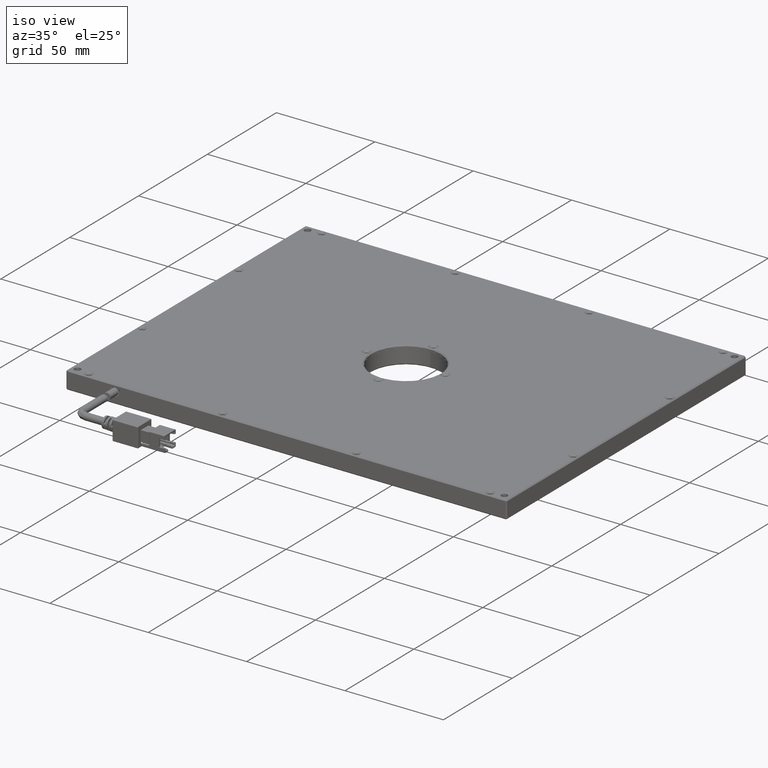
[diagram: clean part render]
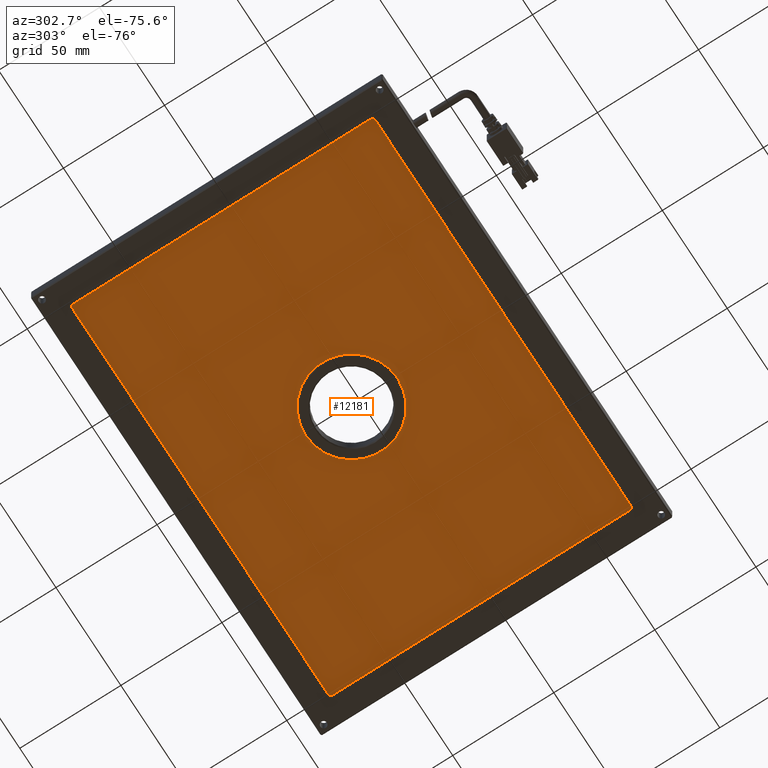
[diagram: tour spotlight — one face highlighted and labeled with its STEP entity id]
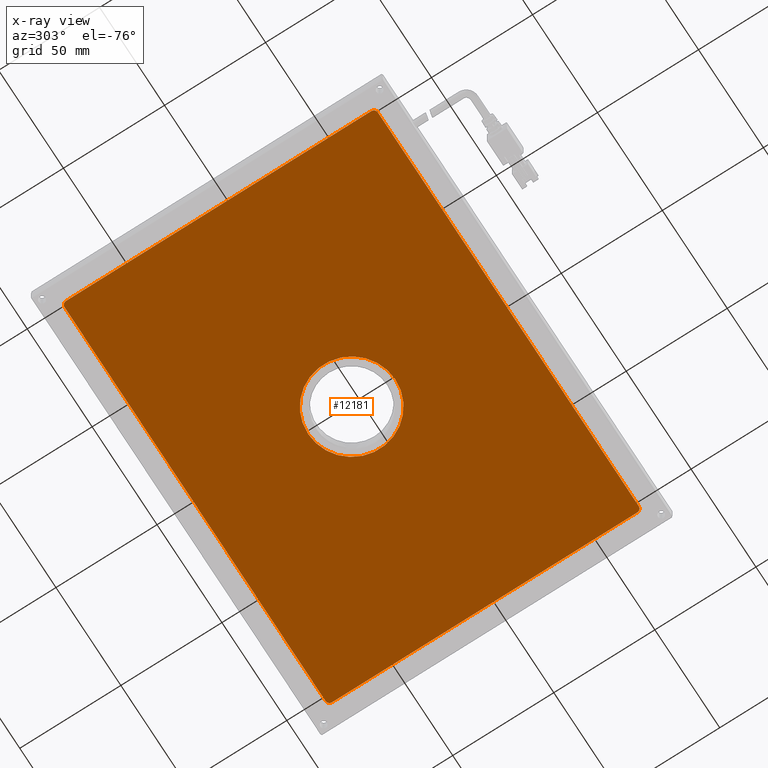
[diagram: x-ray of the same camera — body ghosted, this tour face saturated]
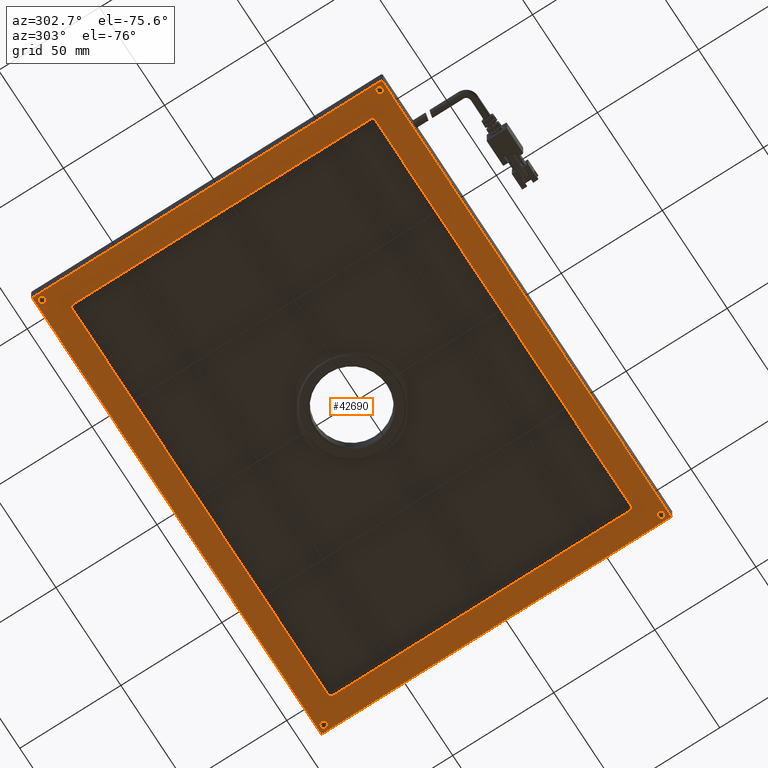
[diagram: tour spotlight — one face highlighted and labeled with its STEP entity id]
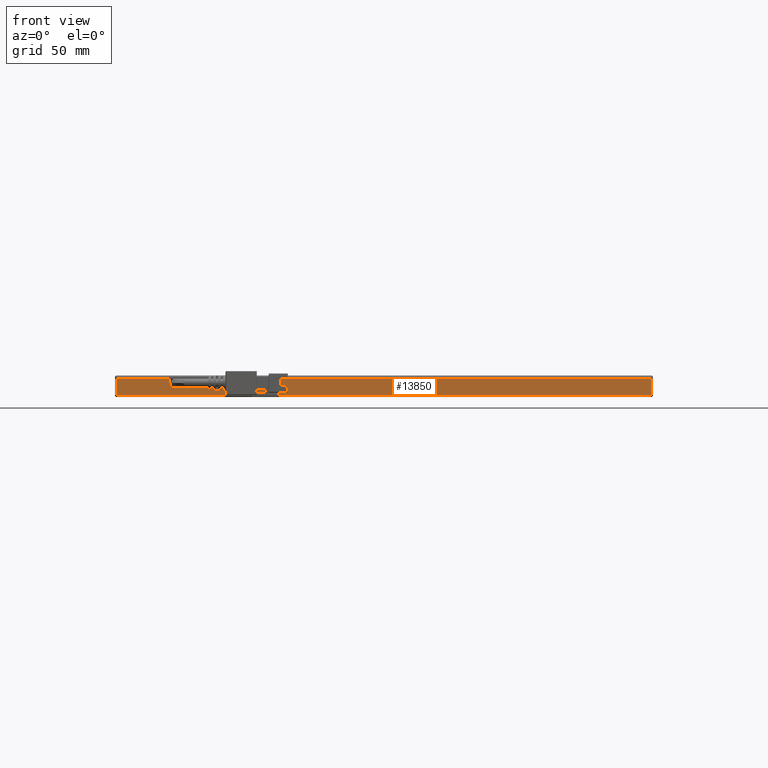
[diagram: tour spotlight — one face highlighted and labeled with its STEP entity id]
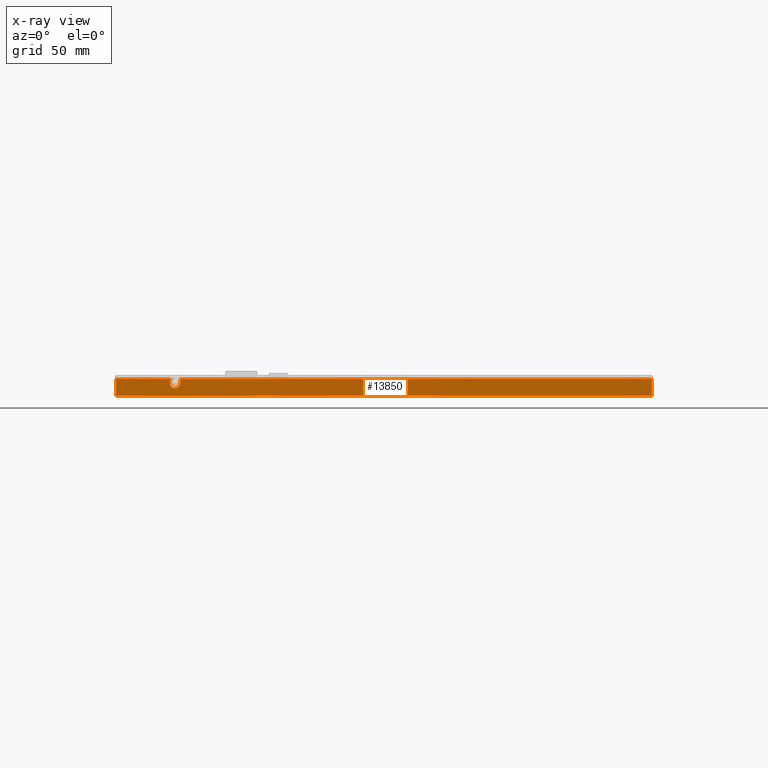
[diagram: x-ray of the same camera — body ghosted, this tour face saturated]
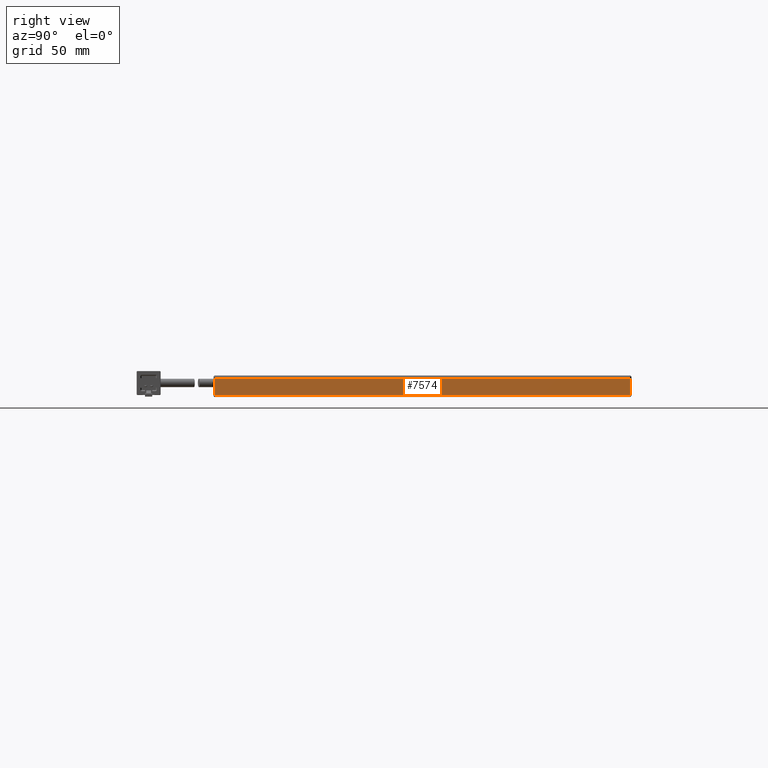
[diagram: tour spotlight — one face highlighted and labeled with its STEP entity id]
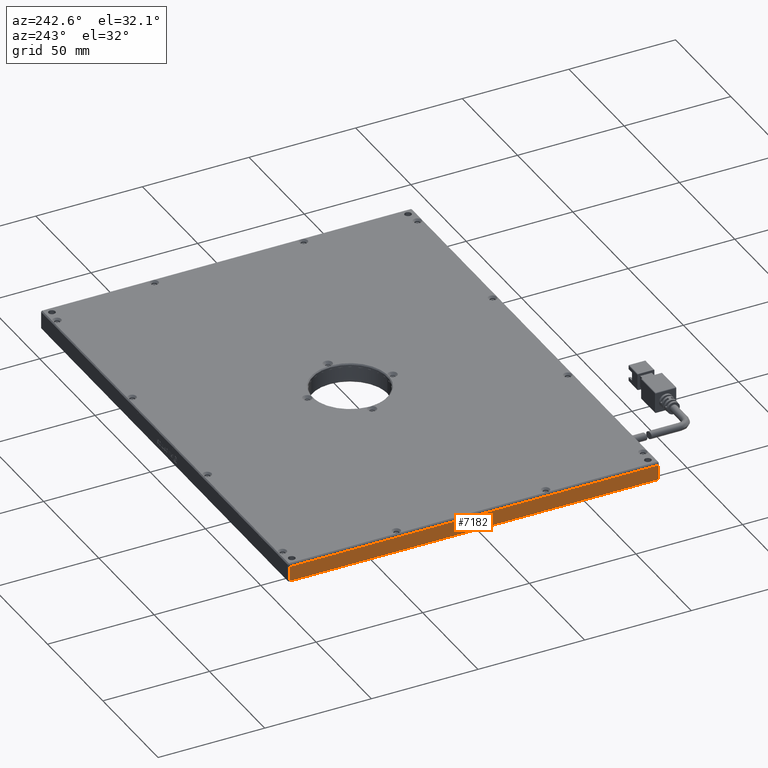
[diagram: tour spotlight — one face highlighted and labeled with its STEP entity id]
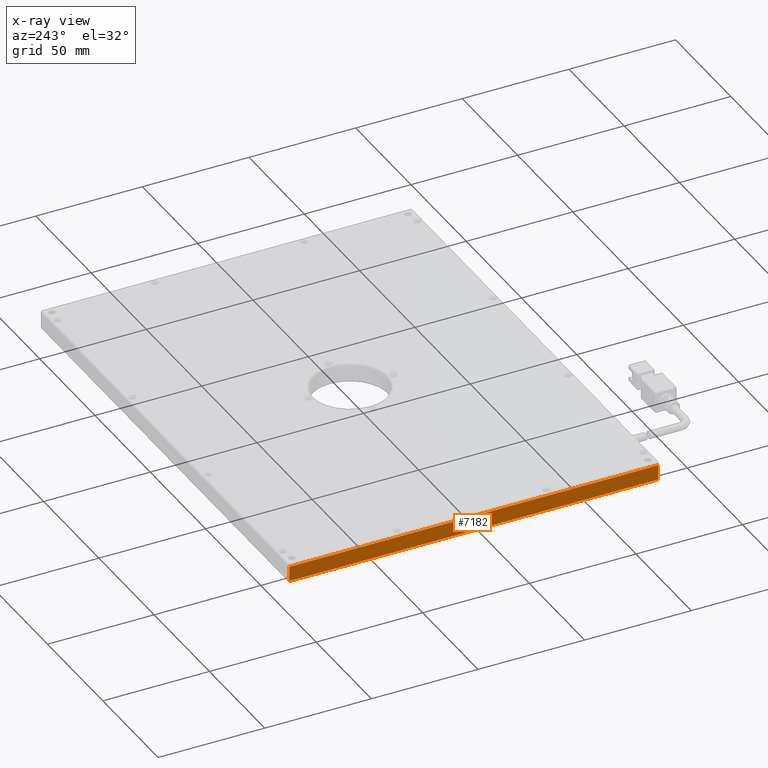
[diagram: x-ray of the same camera — body ghosted, this tour face saturated]
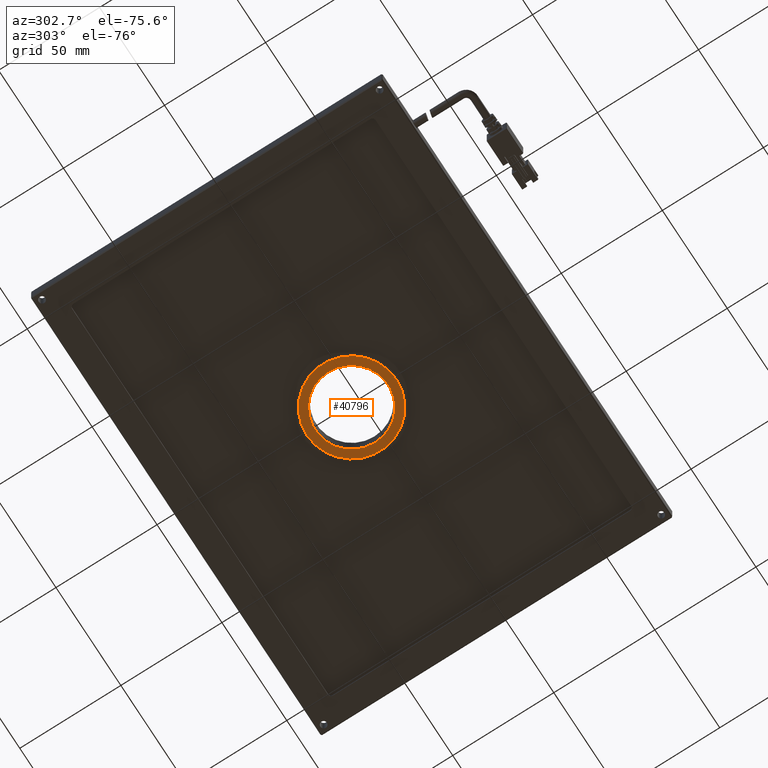
[diagram: tour spotlight — one face highlighted and labeled with its STEP entity id]
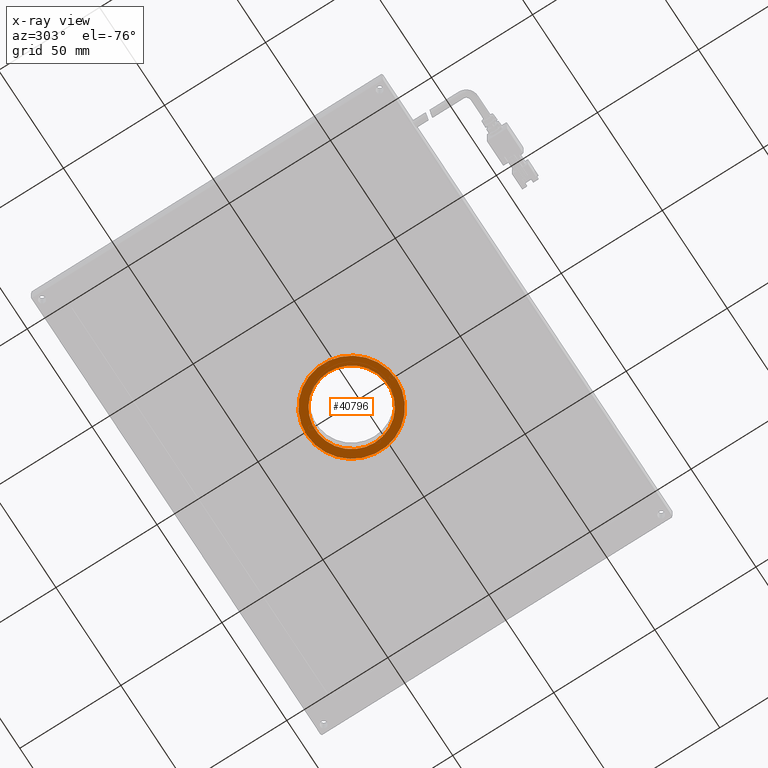
[diagram: x-ray of the same camera — body ghosted, this tour face saturated]
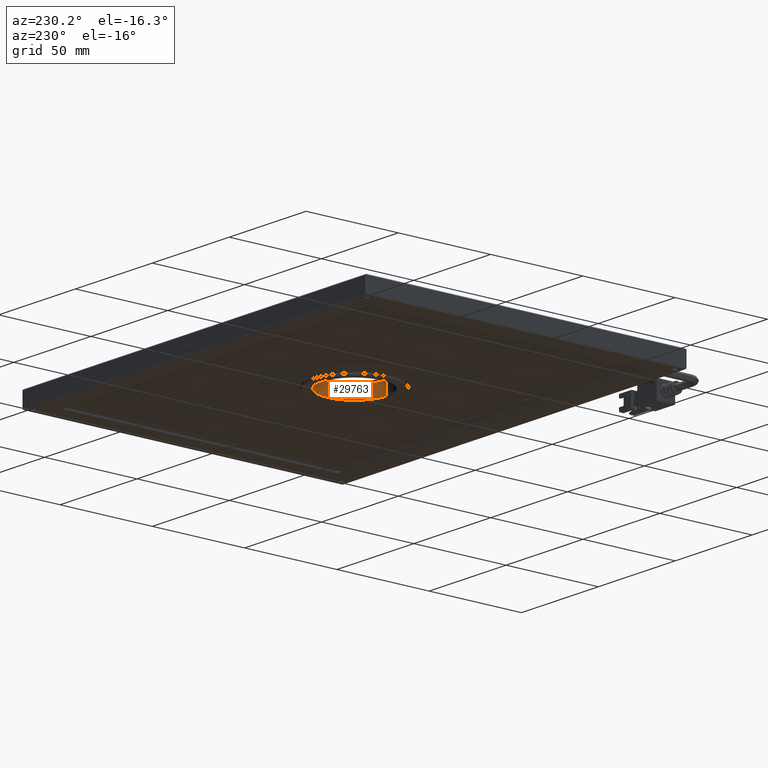
[diagram: tour spotlight — one face highlighted and labeled with its STEP entity id]
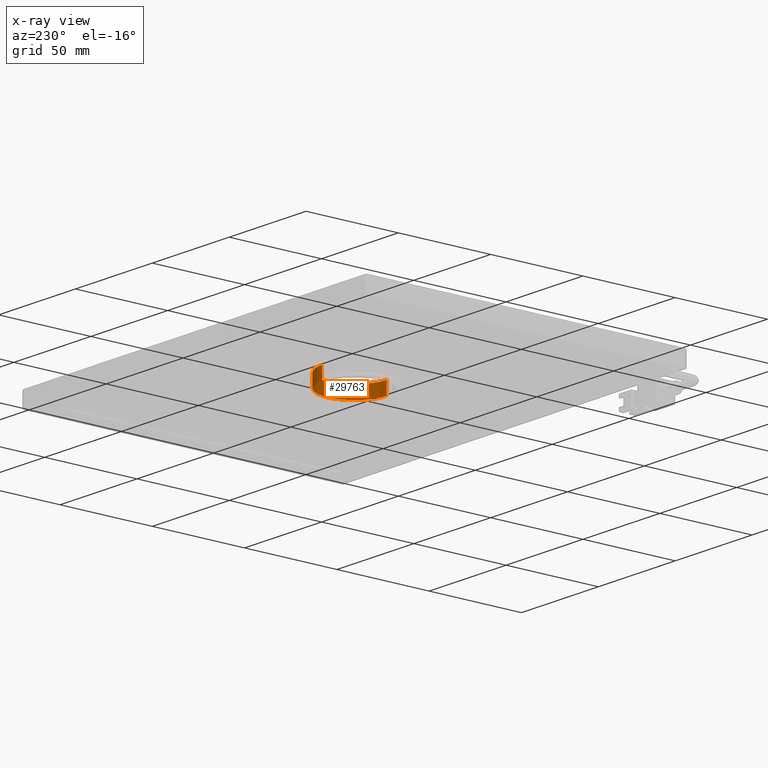
[diagram: x-ray of the same camera — body ghosted, this tour face saturated]
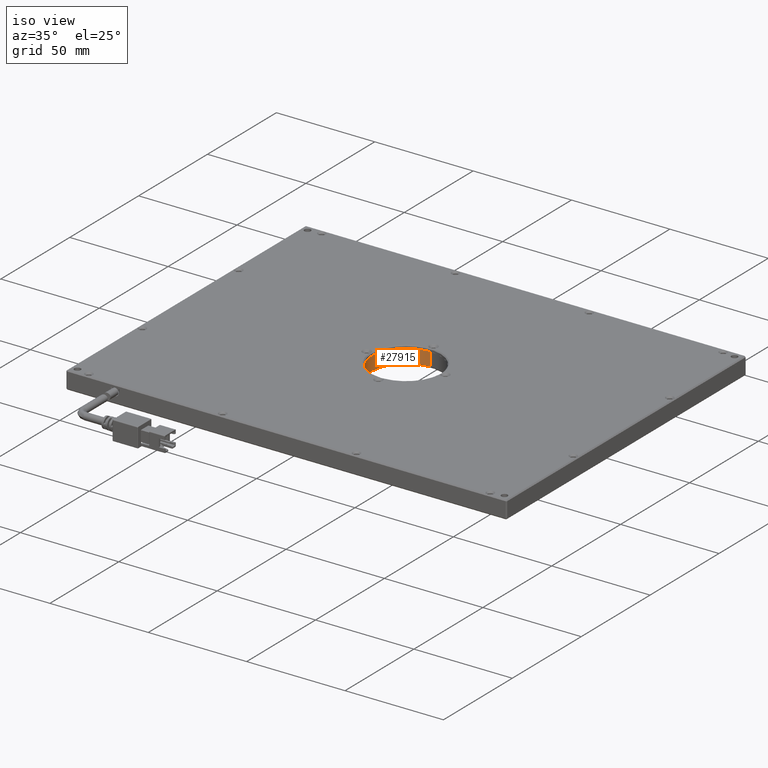
[diagram: tour spotlight — one face highlighted and labeled with its STEP entity id]
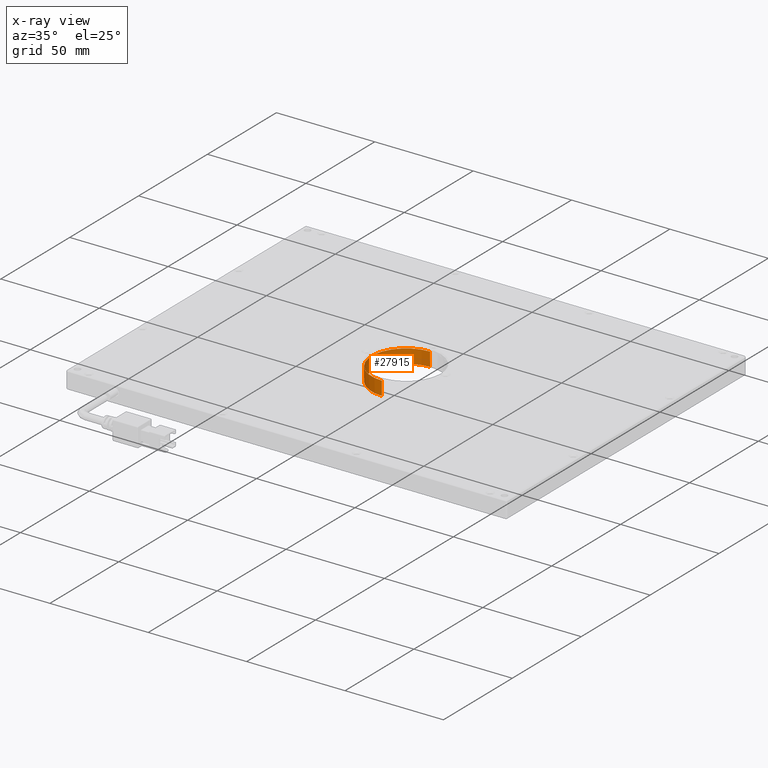
[diagram: x-ray of the same camera — body ghosted, this tour face saturated]
A machine part: a face-by-face anatomy tour. The part has 1145 B-rep faces; the first image is the clean iso view, then the 8 largest visible faces are spotlighted one at a time (largest first), each with its STEP entity span.

Face 1 — auxiliary view, entity #12181. An x-ray twin of the same camera follows (body ghosted, this face saturated) — the face is partly hidden behind the body. In plain terms, the highlighted planar face has unit normal (0, 0, 1).
Definition (entity closure, byte-faithful):
#188 = CARTESIAN_POINT ( 'NONE',  ( -98.17702531645565500, 82.69253164556964500, -2.749999999999999600 ) ) ;
#636 = CARTESIAN_POINT ( 'NONE',  ( 102.8229746835443200, 82.69253164556964500, -2.749999999999999600 ) ) ;
#815 = EDGE_CURVE ( 'NONE', #43552, #23066, #19266, .T. ) ;
#845 = LINE ( 'NONE', #2680, #5655 ) ;
#1288 = VECTOR ( 'NONE', #46641, 1000.000000000000000 ) ;
#2680 = CARTESIAN_POINT ( 'NONE',  ( 104.8229746835443400, 82.69253164556964500, -2.749999999999999600 ) ) ;
#2829 = LINE ( 'NONE', #45600, #34758 ) ;
#4340 = EDGE_LOOP ( 'NONE', ( #16578, #37303 ) ) ;
#5655 = VECTOR ( 'NONE', #33816, 1000.000000000000000 ) ;
#6708 = ORIENTED_EDGE ( 'NONE', *, *, #13297, .F. ) ;
#7332 = CARTESIAN_POINT ( 'NONE',  ( 2.322974683544365900, 5.192531645569626000, -2.749999999999999600 ) ) ;
#7382 = DIRECTION ( 'NONE',  ( 1.000000000000000000, -0.0000000000000000000, 0.0000000000000000000 ) ) ;
#7932 = VERTEX_POINT ( 'NONE', #47831 ) ;
#8109 = VERTEX_POINT ( 'NONE', #188 ) ;
#8318 = CIRCLE ( 'NONE', #46453, 2.000000000000001800 ) ;
#8543 = CIRCLE ( 'NONE', #38385, 21.60000000000000100 ) ;
#8559 = DIRECTION ( 'NONE',  ( 0.0000000000000000000, -1.000000000000000000, 0.0000000000000000000 ) ) ;
#9527 = ORIENTED_EDGE ( 'NONE', *, *, #40891, .T. ) ;
#9566 = AXIS2_PLACEMENT_3D ( 'NONE', #13752, #21953, #25185 ) ;
#10796 = CARTESIAN_POINT ( 'NONE',  ( 2.322974683544365900, 5.192531645569626000, -2.749999999999999600 ) ) ;
#10834 = ORIENTED_EDGE ( 'NONE', *, *, #21950, .T. ) ;
#11235 = DIRECTION ( 'NONE',  ( 0.0000000000000000000, 1.000000000000000000, 0.0000000000000000000 ) ) ;
#11416 = CARTESIAN_POINT ( 'NONE',  ( 104.8229746835443400, -70.30746835443035500, -2.749999999999999600 ) ) ;
#11480 = CARTESIAN_POINT ( 'NONE',  ( -98.17702531645565500, -70.30746835443035500, -2.749999999999999600 ) ) ;
#11827 = ORIENTED_EDGE ( 'NONE', *, *, #24436, .F. ) ;
#12181 = ADVANCED_FACE ( 'NONE', ( #13751, #14945 ), #29018, .F. ) ;
#12185 = EDGE_CURVE ( 'NONE', #27519, #21373, #14325, .T. ) ;
#13297 = EDGE_CURVE ( 'NONE', #7932, #48915, #39401, .T. ) ;
#13751 = FACE_OUTER_BOUND ( 'NONE', #22043, .T. ) ;
#13752 = CARTESIAN_POINT ( 'NONE',  ( 2.322974683544365900, 5.192531645569626000, -2.749999999999999600 ) ) ;
#14325 = CIRCLE ( 'NONE', #21419, 2.000000000000001800 ) ;
#14630 = CARTESIAN_POINT ( 'NONE',  ( -100.1770253164556700, -70.30746835443035500, -2.749999999999999600 ) ) ;
#14945 = FACE_BOUND ( 'NONE', #4340, .T. ) ;
#16215 = CARTESIAN_POINT ( 'NONE',  ( -100.1770253164556700, -72.30746835443035500, -2.749999999999999600 ) ) ;
#16276 = DIRECTION ( 'NONE',  ( 0.0000000000000000000, 0.0000000000000000000, 1.000000000000000000 ) ) ;
#16578 = ORIENTED_EDGE ( 'NONE', *, *, #42344, .T. ) ;
#18532 = VERTEX_POINT ( 'NONE', #26532 ) ;
#18676 = DIRECTION ( 'NONE',  ( -0.0000000000000000000, -0.0000000000000000000, 1.000000000000000000 ) ) ;
#19266 = CIRCLE ( 'NONE', #23750, 21.60000000000000100 ) ;
#20147 = CARTESIAN_POINT ( 'NONE',  ( -98.17702531645565500, 80.69253164556963000, -2.749999999999999600 ) ) ;
#21373 = VERTEX_POINT ( 'NONE', #636 ) ;
#21419 = AXIS2_PLACEMENT_3D ( 'NONE', #21602, #48560, #25523 ) ;
#21602 = CARTESIAN_POINT ( 'NONE',  ( 102.8229746835443300, 80.69253164556963000, -2.749999999999999600 ) ) ;
#21950 = EDGE_CURVE ( 'NONE', #7932, #31568, #30683, .T. ) ;
#21953 = DIRECTION ( 'NONE',  ( 0.0000000000000000000, 0.0000000000000000000, 1.000000000000000000 ) ) ;
#22043 = EDGE_LOOP ( 'NONE', ( #11827, #39571, #37176, #23188, #26995, #9527, #6708, #10834 ) ) ;
#23066 = VERTEX_POINT ( 'NONE', #41714 ) ;
#23188 = ORIENTED_EDGE ( 'NONE', *, *, #29315, .T. ) ;
#23623 = EDGE_CURVE ( 'NONE', #8109, #18532, #45824, .T. ) ;
#23750 = AXIS2_PLACEMENT_3D ( 'NONE', #10796, #18676, #34182 ) ;
#24436 = EDGE_CURVE ( 'NONE', #45807, #31568, #8318, .T. ) ;
#24964 = CARTESIAN_POINT ( 'NONE',  ( -98.17702531645565500, -72.30746835443035500, -2.749999999999999600 ) ) ;
#25185 = DIRECTION ( 'NONE',  ( 0.0000000000000000000, -1.000000000000000000, 0.0000000000000000000 ) ) ;
#25523 = DIRECTION ( 'NONE',  ( 0.0000000000000000000, -1.000000000000000000, 0.0000000000000000000 ) ) ;
#26532 = CARTESIAN_POINT ( 'NONE',  ( -100.1770253164556700, 80.69253164556963000, -2.749999999999999600 ) ) ;
#26995 = ORIENTED_EDGE ( 'NONE', *, *, #12185, .F. ) ;
#27519 = VERTEX_POINT ( 'NONE', #32917 ) ;
#29018 = PLANE ( 'NONE',  #9566 ) ;
#29315 = EDGE_CURVE ( 'NONE', #8109, #21373, #2829, .T. ) ;
#29469 = CARTESIAN_POINT ( 'NONE',  ( 102.8229746835443300, -70.30746835443035500, -2.749999999999999600 ) ) ;
#30459 = DIRECTION ( 'NONE',  ( 0.0000000000000000000, -1.000000000000000000, 0.0000000000000000000 ) ) ;
#30683 = LINE ( 'NONE', #16215, #32502 ) ;
#31568 = VERTEX_POINT ( 'NONE', #24964 ) ;
#32502 = VECTOR ( 'NONE', #39118, 1000.000000000000000 ) ;
#32917 = CARTESIAN_POINT ( 'NONE',  ( 104.8229746835443400, 80.69253164556963000, -2.749999999999999600 ) ) ;
#33452 = EDGE_CURVE ( 'NONE', #45807, #18532, #35662, .T. ) ;
#33722 = DIRECTION ( 'NONE',  ( 0.0000000000000000000, 0.0000000000000000000, 1.000000000000000000 ) ) ;
#33816 = DIRECTION ( 'NONE',  ( -0.0000000000000000000, -1.000000000000000000, -0.0000000000000000000 ) ) ;
#34182 = DIRECTION ( 'NONE',  ( 0.0000000000000000000, 1.000000000000000000, 0.0000000000000000000 ) ) ;
#34281 = DIRECTION ( 'NONE',  ( -0.0000000000000000000, -0.0000000000000000000, 1.000000000000000000 ) ) ;
#34363 = DIRECTION ( 'NONE',  ( 0.0000000000000000000, 0.0000000000000000000, 1.000000000000000000 ) ) ;
#34758 = VECTOR ( 'NONE', #7382, 1000.000000000000000 ) ;
#34877 = CARTESIAN_POINT ( 'NONE',  ( -100.1770253164556700, 82.69253164556964500, -2.749999999999999600 ) ) ;
#35662 = LINE ( 'NONE', #34877, #1288 ) ;
#37176 = ORIENTED_EDGE ( 'NONE', *, *, #23623, .F. ) ;
#37303 = ORIENTED_EDGE ( 'NONE', *, *, #815, .T. ) ;
#37759 = DIRECTION ( 'NONE',  ( 0.0000000000000000000, -1.000000000000000000, 0.0000000000000000000 ) ) ;
#38385 = AXIS2_PLACEMENT_3D ( 'NONE', #7332, #34281, #11235 ) ;
#38876 = CARTESIAN_POINT ( 'NONE',  ( 2.322974683544368500, -16.40746835443037500, -2.749999999999999600 ) ) ;
#39118 = DIRECTION ( 'NONE',  ( -1.000000000000000000, -0.0000000000000000000, -0.0000000000000000000 ) ) ;
#39401 = CIRCLE ( 'NONE', #41544, 2.000000000000001800 ) ;
#39571 = ORIENTED_EDGE ( 'NONE', *, *, #33452, .T. ) ;
#40891 = EDGE_CURVE ( 'NONE', #27519, #48915, #845, .T. ) ;
#40935 = AXIS2_PLACEMENT_3D ( 'NONE', #20147, #16276, #8559 ) ;
#41544 = AXIS2_PLACEMENT_3D ( 'NONE', #29469, #33722, #37759 ) ;
#41714 = CARTESIAN_POINT ( 'NONE',  ( 2.322974683544365900, 26.79253164556962800, -2.749999999999999600 ) ) ;
#42344 = EDGE_CURVE ( 'NONE', #23066, #43552, #8543, .T. ) ;
#43552 = VERTEX_POINT ( 'NONE', #38876 ) ;
#45600 = CARTESIAN_POINT ( 'NONE',  ( -100.1770253164556700, 82.69253164556964500, -2.749999999999999600 ) ) ;
#45807 = VERTEX_POINT ( 'NONE', #14630 ) ;
#45824 = CIRCLE ( 'NONE', #40935, 2.000000000000001800 ) ;
#46453 = AXIS2_PLACEMENT_3D ( 'NONE', #11480, #34363, #30459 ) ;
#46641 = DIRECTION ( 'NONE',  ( -0.0000000000000000000, 1.000000000000000000, -0.0000000000000000000 ) ) ;
#47831 = CARTESIAN_POINT ( 'NONE',  ( 102.8229746835443400, -72.30746835443035500, -2.749999999999999600 ) ) ;
#48560 = DIRECTION ( 'NONE',  ( 0.0000000000000000000, 0.0000000000000000000, 1.000000000000000000 ) ) ;
#48915 = VERTEX_POINT ( 'NONE', #11416 ) ;

Face 2 — auxiliary view, entity #42690. In plain terms, the highlighted planar face has unit normal (0, -0, 1).
Definition (entity closure, byte-faithful):
#665 = DIRECTION ( 'NONE',  ( -0.0000000000000000000, -0.0000000000000000000, -1.000000000000000000 ) ) ;
#699 = CIRCLE ( 'NONE', #43908, 1.500000000000001300 ) ;
#741 = EDGE_CURVE ( 'NONE', #16483, #44125, #28315, .T. ) ;
#755 = EDGE_CURVE ( 'NONE', #27372, #20455, #34346, .T. ) ;
#1061 = VECTOR ( 'NONE', #19859, 1000.000000000000000 ) ;
#1248 = CARTESIAN_POINT ( 'NONE',  ( 2.322974683544309900, 91.69253164556964500, -3.750000000000000000 ) ) ;
#1857 = CARTESIAN_POINT ( 'NONE',  ( -96.17702531645571200, 78.69253164556961600, -3.750000000000000000 ) ) ;
#2608 = CARTESIAN_POINT ( 'NONE',  ( -106.1770253164557100, -78.30746835443038400, -3.750000000000000000 ) ) ;
#2903 = CARTESIAN_POINT ( 'NONE',  ( -106.1770253164557100, 88.69253164556963000, -3.750000000000000000 ) ) ;
#3301 = EDGE_CURVE ( 'NONE', #47375, #7723, #699, .T. ) ;
#3338 = DIRECTION ( 'NONE',  ( -0.0000000000000000000, -0.0000000000000000000, -1.000000000000000000 ) ) ;
#3738 = EDGE_CURVE ( 'NONE', #10597, #10389, #33161, .T. ) ;
#3765 = CARTESIAN_POINT ( 'NONE',  ( 112.4229746835443400, -78.30746835443038400, -3.750000000000000000 ) ) ;
#3870 = LINE ( 'NONE', #19223, #27322 ) ;
#3898 = VERTEX_POINT ( 'NONE', #26591 ) ;
#4251 = CARTESIAN_POINT ( 'NONE',  ( -96.17702531645571200, -68.30746835443037000, -3.750000000000000000 ) ) ;
#4533 = DIRECTION ( 'NONE',  ( 1.000000000000000000, 0.0000000000000000000, 0.0000000000000000000 ) ) ;
#4718 = CARTESIAN_POINT ( 'NONE',  ( 100.8229746835443000, 80.19253164556961600, -3.750000000000000000 ) ) ;
#4987 = ORIENTED_EDGE ( 'NONE', *, *, #16637, .F. ) ;
#5552 = VECTOR ( 'NONE', #34071, 1000.000000000000000 ) ;
#5698 = DIRECTION ( 'NONE',  ( 1.000000000000000000, 0.0000000000000000000, 0.0000000000000000000 ) ) ;
#6154 = EDGE_LOOP ( 'NONE', ( #43028, #45762 ) ) ;
#6458 = DIRECTION ( 'NONE',  ( 1.000000000000000000, 0.0000000000000000000, -0.0000000000000000000 ) ) ;
#6626 = CARTESIAN_POINT ( 'NONE',  ( 110.8229746835443300, -78.30746835443038400, -3.750000000000000000 ) ) ;
#7659 = CARTESIAN_POINT ( 'NONE',  ( -104.5770253164557200, -78.30746835443038400, -3.750000000000000000 ) ) ;
#7723 = VERTEX_POINT ( 'NONE', #39285 ) ;
#7761 = CARTESIAN_POINT ( 'NONE',  ( 112.4229746835443400, 88.69253164556963000, -3.750000000000000000 ) ) ;
#7955 = CARTESIAN_POINT ( 'NONE',  ( 110.8229746835443300, 88.69253164556963000, -3.750000000000000000 ) ) ;
#8463 = DIRECTION ( 'NONE',  ( -0.0000000000000000000, -0.0000000000000000000, -1.000000000000000000 ) ) ;
#8587 = LINE ( 'NONE', #45672, #5552 ) ;
#8593 = EDGE_CURVE ( 'NONE', #17821, #47375, #48052, .T. ) ;
#9161 = ORIENTED_EDGE ( 'NONE', *, *, #13534, .F. ) ;
#9257 = EDGE_LOOP ( 'NONE', ( #16632, #26774, #4987, #40525 ) ) ;
#9446 = ORIENTED_EDGE ( 'NONE', *, *, #24130, .F. ) ;
#9716 = FACE_BOUND ( 'NONE', #13991, .T. ) ;
#10177 = DIRECTION ( 'NONE',  ( -1.000000000000000000, 0.0000000000000000000, 0.0000000000000000000 ) ) ;
#10389 = VERTEX_POINT ( 'NONE', #29862 ) ;
#10597 = VERTEX_POINT ( 'NONE', #18935 ) ;
#10723 = DIRECTION ( 'NONE',  ( 1.000000000000000000, 0.0000000000000000000, 0.0000000000000000000 ) ) ;
#11250 = VERTEX_POINT ( 'NONE', #18705 ) ;
#11311 = LINE ( 'NONE', #12449, #1061 ) ;
#11907 = AXIS2_PLACEMENT_3D ( 'NONE', #2608, #48694, #25964 ) ;
#12449 = CARTESIAN_POINT ( 'NONE',  ( 2.322974683544309900, -69.80746835443037000, -3.750000000000000000 ) ) ;
#12467 = CIRCLE ( 'NONE', #32146, 1.600000000000004100 ) ;
#12721 = DIRECTION ( 'NONE',  ( 0.0000000000000000000, 1.000000000000000000, 0.0000000000000000000 ) ) ;
#13435 = EDGE_CURVE ( 'NONE', #37705, #16483, #3870, .T. ) ;
#13534 = EDGE_CURVE ( 'NONE', #39100, #36215, #40572, .T. ) ;
#13574 = ORIENTED_EDGE ( 'NONE', *, *, #28706, .F. ) ;
#13991 = EDGE_LOOP ( 'NONE', ( #9161, #13574 ) ) ;
#14045 = CIRCLE ( 'NONE', #27552, 1.500000000000001300 ) ;
#14058 = ORIENTED_EDGE ( 'NONE', *, *, #3301, .F. ) ;
#14404 = ORIENTED_EDGE ( 'NONE', *, *, #17096, .F. ) ;
#14527 = DIRECTION ( 'NONE',  ( -1.000000000000000000, 0.0000000000000000000, 0.0000000000000000000 ) ) ;
#14632 = EDGE_LOOP ( 'NONE', ( #9446, #45894 ) ) ;
#15378 = CARTESIAN_POINT ( 'NONE',  ( 109.2229746835443400, 88.69253164556963000, -3.750000000000000000 ) ) ;
#16071 = CARTESIAN_POINT ( 'NONE',  ( -109.1770253164557400, -81.30746835443039800, -3.750000000000000000 ) ) ;
#16188 = VERTEX_POINT ( 'NONE', #36490 ) ;
#16483 = VERTEX_POINT ( 'NONE', #16071 ) ;
#16632 = ORIENTED_EDGE ( 'NONE', *, *, #741, .F. ) ;
#16637 = EDGE_CURVE ( 'NONE', #24262, #37705, #47253, .T. ) ;
#17096 = EDGE_CURVE ( 'NONE', #16188, #11250, #14045, .T. ) ;
#17821 = VERTEX_POINT ( 'NONE', #29534 ) ;
#17901 = PLANE ( 'NONE',  #31945 ) ;
#18091 = CARTESIAN_POINT ( 'NONE',  ( -106.1770253164557100, 88.69253164556963000, -3.750000000000000000 ) ) ;
#18136 = AXIS2_PLACEMENT_3D ( 'NONE', #18091, #29834, #45034 ) ;
#18243 = CARTESIAN_POINT ( 'NONE',  ( 110.8229746835443300, 88.69253164556963000, -3.750000000000000000 ) ) ;
#18705 = CARTESIAN_POINT ( 'NONE',  ( -97.67702531645571200, -68.30746835443037000, -3.750000000000000000 ) ) ;
#18935 = CARTESIAN_POINT ( 'NONE',  ( -104.5770253164557200, 88.69253164556963000, -3.750000000000000000 ) ) ;
#19223 = CARTESIAN_POINT ( 'NONE',  ( -109.1770253164557300, 5.192531645569626000, -3.750000000000000000 ) ) ;
#19859 = DIRECTION ( 'NONE',  ( -1.000000000000000000, -0.0000000000000000000, 0.0000000000000000000 ) ) ;
#19966 = EDGE_CURVE ( 'NONE', #7723, #16188, #11311, .T. ) ;
#20455 = VERTEX_POINT ( 'NONE', #45733 ) ;
#21572 = CARTESIAN_POINT ( 'NONE',  ( 2.322974683544309900, 5.192531645569626000, -3.750000000000000000 ) ) ;
#21644 = AXIS2_PLACEMENT_3D ( 'NONE', #7955, #8463, #38749 ) ;
#21991 = CARTESIAN_POINT ( 'NONE',  ( 102.3229746835443000, 5.192531645569626000, -3.750000000000000000 ) ) ;
#22093 = DIRECTION ( 'NONE',  ( -1.000000000000000000, 0.0000000000000000000, 0.0000000000000000000 ) ) ;
#22115 = DIRECTION ( 'NONE',  ( 0.0000000000000000000, 1.000000000000000000, 0.0000000000000000000 ) ) ;
#23500 = CARTESIAN_POINT ( 'NONE',  ( 113.8229746835443400, -81.30746835443039800, -3.750000000000000000 ) ) ;
#23565 = FACE_BOUND ( 'NONE', #35349, .T. ) ;
#23595 = AXIS2_PLACEMENT_3D ( 'NONE', #2903, #48826, #10177 ) ;
#23764 = CIRCLE ( 'NONE', #18136, 1.600000000000004100 ) ;
#23767 = EDGE_CURVE ( 'NONE', #44125, #24262, #41580, .T. ) ;
#24130 = EDGE_CURVE ( 'NONE', #3898, #39951, #39063, .T. ) ;
#24262 = VERTEX_POINT ( 'NONE', #48304 ) ;
#24486 = AXIS2_PLACEMENT_3D ( 'NONE', #18243, #49038, #14527 ) ;
#24546 = VERTEX_POINT ( 'NONE', #4718 ) ;
#24581 = DIRECTION ( 'NONE',  ( 0.0000000000000000000, -0.0000000000000000000, -1.000000000000000000 ) ) ;
#24748 = FACE_BOUND ( 'NONE', #14632, .T. ) ;
#25337 = EDGE_CURVE ( 'NONE', #10389, #10597, #23764, .T. ) ;
#25491 = DIRECTION ( 'NONE',  ( 0.0000000000000000000, -0.0000000000000000000, 1.000000000000000000 ) ) ;
#25964 = DIRECTION ( 'NONE',  ( -1.000000000000000000, 0.0000000000000000000, 0.0000000000000000000 ) ) ;
#26591 = CARTESIAN_POINT ( 'NONE',  ( -107.7770253164557200, -78.30746835443038400, -3.750000000000000000 ) ) ;
#26752 = AXIS2_PLACEMENT_3D ( 'NONE', #46936, #665, #4533 ) ;
#26774 = ORIENTED_EDGE ( 'NONE', *, *, #13435, .F. ) ;
#27322 = VECTOR ( 'NONE', #30647, 1000.000000000000000 ) ;
#27372 = VERTEX_POINT ( 'NONE', #46239 ) ;
#27552 = AXIS2_PLACEMENT_3D ( 'NONE', #4251, #31811, #27749 ) ;
#27630 = EDGE_CURVE ( 'NONE', #36727, #30444, #12467, .T. ) ;
#27749 = DIRECTION ( 'NONE',  ( 1.000000000000000000, 0.0000000000000000000, 0.0000000000000000000 ) ) ;
#27976 = DIRECTION ( 'NONE',  ( -1.000000000000000000, 0.0000000000000000000, 0.0000000000000000000 ) ) ;
#28315 = LINE ( 'NONE', #36367, #41586 ) ;
#28441 = CARTESIAN_POINT ( 'NONE',  ( 102.3229746835443000, -68.30746835443037000, -3.750000000000000000 ) ) ;
#28706 = EDGE_CURVE ( 'NONE', #36215, #39100, #36676, .T. ) ;
#29534 = CARTESIAN_POINT ( 'NONE',  ( 102.3229746835443000, 78.69253164556961600, -3.750000000000000000 ) ) ;
#29834 = DIRECTION ( 'NONE',  ( -0.0000000000000000000, -0.0000000000000000000, -1.000000000000000000 ) ) ;
#29862 = CARTESIAN_POINT ( 'NONE',  ( -107.7770253164557200, 88.69253164556963000, -3.750000000000000000 ) ) ;
#30064 = CARTESIAN_POINT ( 'NONE',  ( 110.8229746835443300, -78.30746835443038400, -3.750000000000000000 ) ) ;
#30131 = FACE_BOUND ( 'NONE', #6154, .T. ) ;
#30384 = ORIENTED_EDGE ( 'NONE', *, *, #38057, .F. ) ;
#30444 = VERTEX_POINT ( 'NONE', #33733 ) ;
#30647 = DIRECTION ( 'NONE',  ( -0.0000000000000000000, -1.000000000000000000, -0.0000000000000000000 ) ) ;
#30943 = ORIENTED_EDGE ( 'NONE', *, *, #19966, .F. ) ;
#31564 = VECTOR ( 'NONE', #12721, 1000.000000000000000 ) ;
#31811 = DIRECTION ( 'NONE',  ( -0.0000000000000000000, -0.0000000000000000000, -1.000000000000000000 ) ) ;
#31815 = ORIENTED_EDGE ( 'NONE', *, *, #8593, .F. ) ;
#31945 = AXIS2_PLACEMENT_3D ( 'NONE', #21572, #25491, #6458 ) ;
#32146 = AXIS2_PLACEMENT_3D ( 'NONE', #6626, #45506, #22093 ) ;
#32237 = CARTESIAN_POINT ( 'NONE',  ( -97.67702531645571200, 5.192531645569626000, -3.750000000000000000 ) ) ;
#32379 = CARTESIAN_POINT ( 'NONE',  ( -106.1770253164557100, -78.30746835443038400, -3.750000000000000000 ) ) ;
#33101 = CARTESIAN_POINT ( 'NONE',  ( 113.8229746835443400, 5.192531645569626000, -3.750000000000000000 ) ) ;
#33161 = CIRCLE ( 'NONE', #23595, 1.600000000000004100 ) ;
#33571 = AXIS2_PLACEMENT_3D ( 'NONE', #32379, #47668, #27976 ) ;
#33733 = CARTESIAN_POINT ( 'NONE',  ( 109.2229746835443400, -78.30746835443038400, -3.750000000000000000 ) ) ;
#33763 = DIRECTION ( 'NONE',  ( -0.0000000000000000000, 0.0000000000000000000, -1.000000000000000000 ) ) ;
#34071 = DIRECTION ( 'NONE',  ( 1.000000000000000000, 0.0000000000000000000, -0.0000000000000000000 ) ) ;
#34341 = VECTOR ( 'NONE', #22115, 1000.000000000000000 ) ;
#34346 = CIRCLE ( 'NONE', #39829, 1.500000000000001300 ) ;
#35014 = FACE_OUTER_BOUND ( 'NONE', #9257, .T. ) ;
#35086 = EDGE_CURVE ( 'NONE', #30444, #36727, #42459, .T. ) ;
#35302 = CIRCLE ( 'NONE', #11907, 1.600000000000004100 ) ;
#35349 = EDGE_LOOP ( 'NONE', ( #45309, #36453 ) ) ;
#35732 = ORIENTED_EDGE ( 'NONE', *, *, #44256, .F. ) ;
#36215 = VERTEX_POINT ( 'NONE', #7761 ) ;
#36218 = CARTESIAN_POINT ( 'NONE',  ( -109.1770253164557500, 91.69253164556964500, -3.750000000000000000 ) ) ;
#36367 = CARTESIAN_POINT ( 'NONE',  ( 2.322974683544309900, -81.30746835443039800, -3.750000000000000000 ) ) ;
#36453 = ORIENTED_EDGE ( 'NONE', *, *, #3738, .F. ) ;
#36490 = CARTESIAN_POINT ( 'NONE',  ( -96.17702531645571200, -69.80746835443037000, -3.750000000000000000 ) ) ;
#36544 = DIRECTION ( 'NONE',  ( 1.000000000000000000, 0.0000000000000000000, -0.0000000000000000000 ) ) ;
#36676 = CIRCLE ( 'NONE', #24486, 1.600000000000004100 ) ;
#36727 = VERTEX_POINT ( 'NONE', #3765 ) ;
#37149 = EDGE_CURVE ( 'NONE', #39951, #3898, #35302, .T. ) ;
#37705 = VERTEX_POINT ( 'NONE', #36218 ) ;
#38057 = EDGE_CURVE ( 'NONE', #24546, #17821, #39946, .T. ) ;
#38483 = VECTOR ( 'NONE', #48943, 1000.000000000000000 ) ;
#38749 = DIRECTION ( 'NONE',  ( -1.000000000000000000, 0.0000000000000000000, 0.0000000000000000000 ) ) ;
#39063 = CIRCLE ( 'NONE', #33571, 1.600000000000004100 ) ;
#39100 = VERTEX_POINT ( 'NONE', #15378 ) ;
#39285 = CARTESIAN_POINT ( 'NONE',  ( 100.8229746835443000, -69.80746835443037000, -3.750000000000000000 ) ) ;
#39829 = AXIS2_PLACEMENT_3D ( 'NONE', #1857, #24581, #5698 ) ;
#39946 = CIRCLE ( 'NONE', #26752, 1.500000000000001300 ) ;
#39951 = VERTEX_POINT ( 'NONE', #7659 ) ;
#40525 = ORIENTED_EDGE ( 'NONE', *, *, #23767, .F. ) ;
#40572 = CIRCLE ( 'NONE', #21644, 1.600000000000004100 ) ;
#40614 = LINE ( 'NONE', #32237, #31564 ) ;
#40791 = EDGE_LOOP ( 'NONE', ( #14058, #31815, #30384, #49151, #49272, #35732, #14404, #30943 ) ) ;
#41398 = DIRECTION ( 'NONE',  ( -1.000000000000000000, 0.0000000000000000000, 0.0000000000000000000 ) ) ;
#41580 = LINE ( 'NONE', #33101, #34341 ) ;
#41586 = VECTOR ( 'NONE', #36544, 1000.000000000000000 ) ;
#41762 = AXIS2_PLACEMENT_3D ( 'NONE', #30064, #3338, #41398 ) ;
#42459 = CIRCLE ( 'NONE', #41762, 1.600000000000004100 ) ;
#42690 = ADVANCED_FACE ( 'NONE', ( #30131, #23565, #48843, #35014, #9716, #24748 ), #17901, .F. ) ;
#43028 = ORIENTED_EDGE ( 'NONE', *, *, #35086, .F. ) ;
#43908 = AXIS2_PLACEMENT_3D ( 'NONE', #49729, #33763, #10723 ) ;
#44125 = VERTEX_POINT ( 'NONE', #23500 ) ;
#44256 = EDGE_CURVE ( 'NONE', #11250, #27372, #40614, .T. ) ;
#45034 = DIRECTION ( 'NONE',  ( -1.000000000000000000, 0.0000000000000000000, 0.0000000000000000000 ) ) ;
#45309 = ORIENTED_EDGE ( 'NONE', *, *, #25337, .F. ) ;
#45506 = DIRECTION ( 'NONE',  ( -0.0000000000000000000, -0.0000000000000000000, -1.000000000000000000 ) ) ;
#45672 = CARTESIAN_POINT ( 'NONE',  ( 2.322974683544309900, 80.19253164556961600, -3.750000000000000000 ) ) ;
#45733 = CARTESIAN_POINT ( 'NONE',  ( -96.17702531645571200, 80.19253164556961600, -3.750000000000000000 ) ) ;
#45762 = ORIENTED_EDGE ( 'NONE', *, *, #27630, .F. ) ;
#45894 = ORIENTED_EDGE ( 'NONE', *, *, #37149, .F. ) ;
#46239 = CARTESIAN_POINT ( 'NONE',  ( -97.67702531645571200, 78.69253164556961600, -3.750000000000000000 ) ) ;
#46936 = CARTESIAN_POINT ( 'NONE',  ( 100.8229746835443000, 78.69253164556961600, -3.750000000000000000 ) ) ;
#46971 = EDGE_CURVE ( 'NONE', #20455, #24546, #8587, .T. ) ;
#47253 = LINE ( 'NONE', #1248, #49665 ) ;
#47375 = VERTEX_POINT ( 'NONE', #28441 ) ;
#47668 = DIRECTION ( 'NONE',  ( -0.0000000000000000000, -0.0000000000000000000, -1.000000000000000000 ) ) ;
#47842 = DIRECTION ( 'NONE',  ( -1.000000000000000000, -0.0000000000000000000, 0.0000000000000000000 ) ) ;
#48052 = LINE ( 'NONE', #21991, #38483 ) ;
#48304 = CARTESIAN_POINT ( 'NONE',  ( 113.8229746835443400, 91.69253164556964500, -3.750000000000000000 ) ) ;
#48694 = DIRECTION ( 'NONE',  ( -0.0000000000000000000, -0.0000000000000000000, -1.000000000000000000 ) ) ;
#48826 = DIRECTION ( 'NONE',  ( -0.0000000000000000000, -0.0000000000000000000, -1.000000000000000000 ) ) ;
#48843 = FACE_BOUND ( 'NONE', #40791, .T. ) ;
#48943 = DIRECTION ( 'NONE',  ( -0.0000000000000000000, -1.000000000000000000, -0.0000000000000000000 ) ) ;
#49038 = DIRECTION ( 'NONE',  ( -0.0000000000000000000, -0.0000000000000000000, -1.000000000000000000 ) ) ;
#49151 = ORIENTED_EDGE ( 'NONE', *, *, #46971, .F. ) ;
#49272 = ORIENTED_EDGE ( 'NONE', *, *, #755, .F. ) ;
#49665 = VECTOR ( 'NONE', #47842, 1000.000000000000000 ) ;
#49729 = CARTESIAN_POINT ( 'NONE',  ( 100.8229746835443000, -68.30746835443037000, -3.750000000000000000 ) ) ;

Face 3 — front view, entity #13850. An x-ray twin of the same camera follows (body ghosted, this face saturated) — the face is partly hidden behind the body. In plain terms, the highlighted planar face has unit normal (0, 1, -0).
Definition (entity closure, byte-faithful):
#542 = VERTEX_POINT ( 'NONE', #26763 ) ;
#787 = ORIENTED_EDGE ( 'NONE', *, *, #15966, .F. ) ;
#1145 = EDGE_CURVE ( 'NONE', #14072, #35317, #10172, .T. ) ;
#1767 = DIRECTION ( 'NONE',  ( 0.0000000000000000000, -1.000000000000000000, 0.0000000000000000000 ) ) ;
#2056 = VERTEX_POINT ( 'NONE', #19379 ) ;
#3594 = AXIS2_PLACEMENT_3D ( 'NONE', #12998, #47316, #24597 ) ;
#3914 = EDGE_CURVE ( 'NONE', #2056, #14072, #31882, .T. ) ;
#4304 = CARTESIAN_POINT ( 'NONE',  ( 113.8229746835443400, -81.80746835443039800, 3.750000000000000000 ) ) ;
#4369 = DIRECTION ( 'NONE',  ( 1.000000000000000000, 0.0000000000000000000, 0.0000000000000000000 ) ) ;
#4385 = ORIENTED_EDGE ( 'NONE', *, *, #23152, .F. ) ;
#4985 = CARTESIAN_POINT ( 'NONE',  ( -86.82702531647454700, -81.80746835446956300, 2.099999999999994300 ) ) ;
#6054 = ORIENTED_EDGE ( 'NONE', *, *, #20715, .F. ) ;
#6129 = VECTOR ( 'NONE', #38695, 1000.000000000000000 ) ;
#6536 = CARTESIAN_POINT ( 'NONE',  ( 113.8229746835443400, -81.80746835443039800, -3.250000000000002200 ) ) ;
#6601 = EDGE_CURVE ( 'NONE', #542, #24778, #37917, .T. ) ;
#8598 = VECTOR ( 'NONE', #31926, 1000.000000000000000 ) ;
#9808 = LINE ( 'NONE', #32280, #8598 ) ;
#10172 = LINE ( 'NONE', #32612, #27587 ) ;
#12998 = CARTESIAN_POINT ( 'NONE',  ( -84.67702531645572600, -81.80746835448576300, 2.099999999999999600 ) ) ;
#13833 = VECTOR ( 'NONE', #49658, 1000.000000000000000 ) ;
#13850 = ADVANCED_FACE ( 'NONE', ( #37228 ), #36699, .F. ) ;
#14072 = VERTEX_POINT ( 'NONE', #23898 ) ;
#14988 = CARTESIAN_POINT ( 'NONE',  ( 2.322974683544309900, -81.80746835443041200, 3.750000000000000000 ) ) ;
#15376 = ORIENTED_EDGE ( 'NONE', *, *, #15420, .F. ) ;
#15420 = EDGE_CURVE ( 'NONE', #21601, #542, #27897, .T. ) ;
#15966 = EDGE_CURVE ( 'NONE', #46694, #2056, #16395, .T. ) ;
#16067 = AXIS2_PLACEMENT_3D ( 'NONE', #33336, #29076, #29248 ) ;
#16395 = LINE ( 'NONE', #38379, #6129 ) ;
#17629 = EDGE_LOOP ( 'NONE', ( #6054, #25318, #28155, #787, #20486, #48263, #4385, #28371, #15376 ) ) ;
#19379 = CARTESIAN_POINT ( 'NONE',  ( -109.1770253164556800, -81.80746835443042600, 3.750000000000000000 ) ) ;
#20486 = ORIENTED_EDGE ( 'NONE', *, *, #28370, .T. ) ;
#20715 = EDGE_CURVE ( 'NONE', #35317, #21601, #41212, .T. ) ;
#20933 = CARTESIAN_POINT ( 'NONE',  ( -84.67702531645572600, -81.80746835448576300, 2.099999999999999600 ) ) ;
#21157 = VERTEX_POINT ( 'NONE', #6536 ) ;
#21601 = VERTEX_POINT ( 'NONE', #37287 ) ;
#23152 = EDGE_CURVE ( 'NONE', #24778, #25720, #9808, .T. ) ;
#23898 = CARTESIAN_POINT ( 'NONE',  ( -86.82702531645571800, -81.80746835443039800, 3.750000000000000000 ) ) ;
#24597 = DIRECTION ( 'NONE',  ( 0.0000000000000000000, 0.0000000000000000000, -1.000000000000000000 ) ) ;
#24676 = VECTOR ( 'NONE', #4369, 1000.000000000000000 ) ;
#24742 = LINE ( 'NONE', #4304, #41032 ) ;
#24778 = VERTEX_POINT ( 'NONE', #44266 ) ;
#24815 = DIRECTION ( 'NONE',  ( 0.0000000000000000000, 0.0000000000000000000, -1.000000000000000000 ) ) ;
#24986 = CARTESIAN_POINT ( 'NONE',  ( -82.52702531645569200, -81.80746835443039800, 3.750000000000000000 ) ) ;
#25318 = ORIENTED_EDGE ( 'NONE', *, *, #1145, .F. ) ;
#25720 = VERTEX_POINT ( 'NONE', #28804 ) ;
#26763 = CARTESIAN_POINT ( 'NONE',  ( -82.52702531644575900, -81.80746835446956300, 2.099999999999999600 ) ) ;
#27587 = VECTOR ( 'NONE', #47901, 1000.000000000000000 ) ;
#27897 = CIRCLE ( 'NONE', #3594, 2.150000000028740000 ) ;
#28155 = ORIENTED_EDGE ( 'NONE', *, *, #3914, .F. ) ;
#28370 = EDGE_CURVE ( 'NONE', #46694, #21157, #36145, .T. ) ;
#28371 = ORIENTED_EDGE ( 'NONE', *, *, #6601, .F. ) ;
#28804 = CARTESIAN_POINT ( 'NONE',  ( 113.8229746835443600, -81.80746835443039800, 3.750000000000000000 ) ) ;
#29076 = DIRECTION ( 'NONE',  ( 0.0000000000000000000, 1.000000000000000000, -0.0000000000000000000 ) ) ;
#29248 = DIRECTION ( 'NONE',  ( 0.0000000000000000000, 0.0000000000000000000, 1.000000000000000000 ) ) ;
#31277 = VECTOR ( 'NONE', #47706, 1000.000000000000000 ) ;
#31882 = LINE ( 'NONE', #14988, #13833 ) ;
#31926 = DIRECTION ( 'NONE',  ( 1.000000000000000000, 0.0000000000000000000, -0.0000000000000000000 ) ) ;
#32280 = CARTESIAN_POINT ( 'NONE',  ( 2.322974683544309900, -81.80746835443039800, 3.750000000000000000 ) ) ;
#32612 = CARTESIAN_POINT ( 'NONE',  ( -86.82702531645571800, -81.80746835443039800, 3.750000000000000000 ) ) ;
#33336 = CARTESIAN_POINT ( 'NONE',  ( 114.3229746835443400, -81.80746835443039800, 3.750000000000000000 ) ) ;
#34941 = DIRECTION ( 'NONE',  ( -0.0000000000000000000, -0.0000000000000000000, -1.000000000000000000 ) ) ;
#35317 = VERTEX_POINT ( 'NONE', #4985 ) ;
#36145 = LINE ( 'NONE', #38395, #24676 ) ;
#36615 = CARTESIAN_POINT ( 'NONE',  ( -109.1770253164557300, -81.80746835443042600, -3.250000000000001300 ) ) ;
#36699 = PLANE ( 'NONE',  #16067 ) ;
#37228 = FACE_OUTER_BOUND ( 'NONE', #17629, .T. ) ;
#37287 = CARTESIAN_POINT ( 'NONE',  ( -84.67702531645572600, -81.80746835448576300, -0.05000000002874580000 ) ) ;
#37917 = LINE ( 'NONE', #24986, #31277 ) ;
#38379 = CARTESIAN_POINT ( 'NONE',  ( -109.1770253164557300, -81.80746835443039800, 3.750000000000000000 ) ) ;
#38395 = CARTESIAN_POINT ( 'NONE',  ( 114.3229746835443400, -81.80746835443039800, -3.249999999999999600 ) ) ;
#38695 = DIRECTION ( 'NONE',  ( 0.0000000000000000000, 0.0000000000000000000, 1.000000000000000000 ) ) ;
#41032 = VECTOR ( 'NONE', #34941, 1000.000000000000000 ) ;
#41212 = CIRCLE ( 'NONE', #47469, 2.150000000028740000 ) ;
#42427 = EDGE_CURVE ( 'NONE', #25720, #21157, #24742, .T. ) ;
#44266 = CARTESIAN_POINT ( 'NONE',  ( -82.52702531645569200, -81.80746835443039800, 3.750000000000000000 ) ) ;
#46694 = VERTEX_POINT ( 'NONE', #36615 ) ;
#47316 = DIRECTION ( 'NONE',  ( 0.0000000000000000000, -1.000000000000000000, 0.0000000000000000000 ) ) ;
#47469 = AXIS2_PLACEMENT_3D ( 'NONE', #20933, #1767, #24815 ) ;
#47706 = DIRECTION ( 'NONE',  ( 0.0000000000000000000, 0.0000000000000000000, 1.000000000000000000 ) ) ;
#47901 = DIRECTION ( 'NONE',  ( -0.0000000000000000000, -0.0000000000000000000, -1.000000000000000000 ) ) ;
#48263 = ORIENTED_EDGE ( 'NONE', *, *, #42427, .F. ) ;
#49658 = DIRECTION ( 'NONE',  ( 1.000000000000000000, 0.0000000000000000000, -0.0000000000000000000 ) ) ;

Face 4 — right view, entity #7574. In plain terms, the highlighted planar face has unit normal (-1, 0, 0).
Definition (entity closure, byte-faithful):
#254 = DIRECTION ( 'NONE',  ( -1.000000000000000000, 0.0000000000000000000, 0.0000000000000000000 ) ) ;
#780 = EDGE_LOOP ( 'NONE', ( #16683, #6115, #3727, #32021 ) ) ;
#1174 = DIRECTION ( 'NONE',  ( 0.0000000000000000000, 0.0000000000000000000, 1.000000000000000000 ) ) ;
#1667 = VERTEX_POINT ( 'NONE', #7271 ) ;
#3727 = ORIENTED_EDGE ( 'NONE', *, *, #11975, .F. ) ;
#4337 = LINE ( 'NONE', #49900, #17556 ) ;
#4454 = DIRECTION ( 'NONE',  ( 0.0000000000000000000, 0.0000000000000000000, 1.000000000000000000 ) ) ;
#4905 = LINE ( 'NONE', #30692, #39845 ) ;
#5215 = FACE_OUTER_BOUND ( 'NONE', #780, .T. ) ;
#5529 = CARTESIAN_POINT ( 'NONE',  ( 114.3229746835443400, -81.30746835443039800, 3.750000000000000000 ) ) ;
#5905 = VERTEX_POINT ( 'NONE', #47110 ) ;
#6115 = ORIENTED_EDGE ( 'NONE', *, *, #10583, .T. ) ;
#7271 = CARTESIAN_POINT ( 'NONE',  ( 114.3229746835443400, 91.69253164556960200, 3.750000000000000000 ) ) ;
#7574 = ADVANCED_FACE ( 'NONE', ( #5215 ), #30183, .F. ) ;
#8411 = EDGE_CURVE ( 'NONE', #41799, #34137, #8440, .T. ) ;
#8440 = LINE ( 'NONE', #5529, #30072 ) ;
#10583 = EDGE_CURVE ( 'NONE', #41799, #5905, #4337, .T. ) ;
#11975 = EDGE_CURVE ( 'NONE', #1667, #5905, #12593, .T. ) ;
#12593 = LINE ( 'NONE', #49945, #45725 ) ;
#14728 = DIRECTION ( 'NONE',  ( 0.0000000000000000000, 1.000000000000000000, -0.0000000000000000000 ) ) ;
#16060 = CARTESIAN_POINT ( 'NONE',  ( 114.3229746835443400, -81.80746835443039800, 3.750000000000000000 ) ) ;
#16683 = ORIENTED_EDGE ( 'NONE', *, *, #8411, .F. ) ;
#17556 = VECTOR ( 'NONE', #14728, 1000.000000000000000 ) ;
#22636 = DIRECTION ( 'NONE',  ( 0.0000000000000000000, 1.000000000000000000, 0.0000000000000000000 ) ) ;
#23532 = EDGE_CURVE ( 'NONE', #34137, #1667, #4905, .T. ) ;
#26875 = DIRECTION ( 'NONE',  ( -0.0000000000000000000, -0.0000000000000000000, -1.000000000000000000 ) ) ;
#30072 = VECTOR ( 'NONE', #1174, 1000.000000000000000 ) ;
#30183 = PLANE ( 'NONE',  #46601 ) ;
#30692 = CARTESIAN_POINT ( 'NONE',  ( 114.3229746835443400, 5.192531645569626000, 3.750000000000000000 ) ) ;
#32021 = ORIENTED_EDGE ( 'NONE', *, *, #23532, .F. ) ;
#34137 = VERTEX_POINT ( 'NONE', #47678 ) ;
#35610 = CARTESIAN_POINT ( 'NONE',  ( 114.3229746835443400, -81.30746835443039800, -3.250000000000001300 ) ) ;
#39845 = VECTOR ( 'NONE', #22636, 1000.000000000000000 ) ;
#41799 = VERTEX_POINT ( 'NONE', #35610 ) ;
#45725 = VECTOR ( 'NONE', #26875, 1000.000000000000000 ) ;
#46601 = AXIS2_PLACEMENT_3D ( 'NONE', #16060, #254, #4454 ) ;
#47110 = CARTESIAN_POINT ( 'NONE',  ( 114.3229746835443400, 91.69253164556963000, -3.250000000000001300 ) ) ;
#47678 = CARTESIAN_POINT ( 'NONE',  ( 114.3229746835443400, -81.30746835443039800, 3.750000000000000000 ) ) ;
#49900 = CARTESIAN_POINT ( 'NONE',  ( 114.3229746835443400, -81.80746835443039800, -3.249999999999999600 ) ) ;
#49945 = CARTESIAN_POINT ( 'NONE',  ( 114.3229746835443400, 91.69253164556955900, 3.750000000000000000 ) ) ;

Face 5 — auxiliary view, entity #7182. An x-ray twin of the same camera follows (body ghosted, this face saturated) — the face is partly hidden behind the body. In plain terms, the highlighted planar face has unit normal (1, 0, 0).
Definition (entity closure, byte-faithful):
#2416 = CARTESIAN_POINT ( 'NONE',  ( -109.6770253164557300, -81.30746835443039800, 3.750000000000000000 ) ) ;
#3087 = VERTEX_POINT ( 'NONE', #32098 ) ;
#5254 = DIRECTION ( 'NONE',  ( 0.0000000000000000000, 0.0000000000000000000, -1.000000000000000000 ) ) ;
#6273 = EDGE_LOOP ( 'NONE', ( #30576, #37257, #25673, #31061 ) ) ;
#6488 = CARTESIAN_POINT ( 'NONE',  ( -109.6770253164557300, -81.80746835443039800, -3.249999999999999600 ) ) ;
#7182 = ADVANCED_FACE ( 'NONE', ( #34794 ), #31668, .F. ) ;
#10634 = LINE ( 'NONE', #15329, #41337 ) ;
#11035 = CARTESIAN_POINT ( 'NONE',  ( -109.6770253164557300, -81.30746835443039800, -3.250000000000002200 ) ) ;
#11123 = LINE ( 'NONE', #2416, #17710 ) ;
#11243 = CARTESIAN_POINT ( 'NONE',  ( -109.6770253164557400, 5.192531645569626000, 3.750000000000000000 ) ) ;
#13352 = EDGE_CURVE ( 'NONE', #36684, #27605, #11123, .T. ) ;
#14673 = AXIS2_PLACEMENT_3D ( 'NONE', #31836, #16371, #5254 ) ;
#15329 = CARTESIAN_POINT ( 'NONE',  ( -109.6770253164557300, 91.69253164556964500, 3.750000000000000000 ) ) ;
#16371 = DIRECTION ( 'NONE',  ( 1.000000000000000000, 0.0000000000000000000, 0.0000000000000000000 ) ) ;
#16991 = LINE ( 'NONE', #6488, #36256 ) ;
#17710 = VECTOR ( 'NONE', #33232, 1000.000000000000000 ) ;
#18272 = DIRECTION ( 'NONE',  ( 0.0000000000000000000, -1.000000000000000000, -0.0000000000000000000 ) ) ;
#18627 = DIRECTION ( 'NONE',  ( -0.0000000000000000000, -1.000000000000000000, -0.0000000000000000000 ) ) ;
#21137 = LINE ( 'NONE', #11243, #23004 ) ;
#23004 = VECTOR ( 'NONE', #18627, 1000.000000000000000 ) ;
#23325 = EDGE_CURVE ( 'NONE', #25769, #27605, #16991, .T. ) ;
#25673 = ORIENTED_EDGE ( 'NONE', *, *, #34609, .F. ) ;
#25769 = VERTEX_POINT ( 'NONE', #37232 ) ;
#27605 = VERTEX_POINT ( 'NONE', #11035 ) ;
#30576 = ORIENTED_EDGE ( 'NONE', *, *, #13352, .F. ) ;
#31061 = ORIENTED_EDGE ( 'NONE', *, *, #23325, .T. ) ;
#31668 = PLANE ( 'NONE',  #14673 ) ;
#31836 = CARTESIAN_POINT ( 'NONE',  ( -109.6770253164557300, -81.80746835443039800, 3.750000000000000000 ) ) ;
#32098 = CARTESIAN_POINT ( 'NONE',  ( -109.6770253164557700, 91.69253164556958800, 3.750000000000000000 ) ) ;
#33232 = DIRECTION ( 'NONE',  ( 0.0000000000000000000, 0.0000000000000000000, -1.000000000000000000 ) ) ;
#34609 = EDGE_CURVE ( 'NONE', #25769, #3087, #10634, .T. ) ;
#34794 = FACE_OUTER_BOUND ( 'NONE', #6273, .T. ) ;
#36256 = VECTOR ( 'NONE', #18272, 1000.000000000000000 ) ;
#36684 = VERTEX_POINT ( 'NONE', #49706 ) ;
#37232 = CARTESIAN_POINT ( 'NONE',  ( -109.6770253164557500, 91.69253164556961600, -3.250000000000001300 ) ) ;
#37257 = ORIENTED_EDGE ( 'NONE', *, *, #38558, .F. ) ;
#38558 = EDGE_CURVE ( 'NONE', #3087, #36684, #21137, .T. ) ;
#41337 = VECTOR ( 'NONE', #46144, 1000.000000000000000 ) ;
#46144 = DIRECTION ( 'NONE',  ( -0.0000000000000000000, -0.0000000000000000000, 1.000000000000000000 ) ) ;
#49706 = CARTESIAN_POINT ( 'NONE',  ( -109.6770253164557400, -81.30746835443039800, 3.750000000000000000 ) ) ;

Face 6 — auxiliary view, entity #40796. An x-ray twin of the same camera follows (body ghosted, this face saturated) — the face is partly hidden behind the body. In plain terms, the highlighted planar face has unit normal (0, 0, 1).
Definition (entity closure, byte-faithful):
#218 = DIRECTION ( 'NONE',  ( 0.0000000000000000000, 0.0000000000000000000, 1.000000000000000000 ) ) ;
#1566 = VERTEX_POINT ( 'NONE', #48517 ) ;
#2125 = DIRECTION ( 'NONE',  ( 2.409338161078900400E-017, 0.0000000000000000000, -1.000000000000000000 ) ) ;
#2510 = DIRECTION ( 'NONE',  ( 0.0000000000000000000, 0.0000000000000000000, 1.000000000000000000 ) ) ;
#3835 = AXIS2_PLACEMENT_3D ( 'NONE', #11187, #25959, #37772 ) ;
#4485 = VERTEX_POINT ( 'NONE', #23542 ) ;
#5645 = CARTESIAN_POINT ( 'NONE',  ( 2.322974683544309900, 5.192531645569604700, -3.750000000000000000 ) ) ;
#6192 = CARTESIAN_POINT ( 'NONE',  ( -20.37702531645569300, 5.192531645569604700, -3.750000000000000000 ) ) ;
#6359 = AXIS2_PLACEMENT_3D ( 'NONE', #6192, #2510, #6362 ) ;
#6362 = DIRECTION ( 'NONE',  ( 0.0000000000000000000, -1.000000000000000000, 0.0000000000000000000 ) ) ;
#7638 = DIRECTION ( 'NONE',  ( 0.0000000000000000000, -1.000000000000000000, 0.0000000000000000000 ) ) ;
#8147 = CARTESIAN_POINT ( 'NONE',  ( 2.322974683544309900, 5.192531645569604700, -3.750000000000000000 ) ) ;
#10263 = CIRCLE ( 'NONE', #20660, 22.19999999999999600 ) ;
#10328 = EDGE_CURVE ( 'NONE', #41250, #4485, #42956, .T. ) ;
#11187 = CARTESIAN_POINT ( 'NONE',  ( 2.322974683544309900, 5.192531645569604700, -3.750000000000003600 ) ) ;
#13544 = FACE_BOUND ( 'NONE', #32901, .T. ) ;
#14236 = AXIS2_PLACEMENT_3D ( 'NONE', #5645, #2125, #44545 ) ;
#19590 = CARTESIAN_POINT ( 'NONE',  ( 2.322974683544312600, 27.39253164556960100, -3.750000000000003600 ) ) ;
#19914 = DIRECTION ( 'NONE',  ( 2.409338161078900400E-017, 0.0000000000000000000, -1.000000000000000000 ) ) ;
#20660 = AXIS2_PLACEMENT_3D ( 'NONE', #23625, #218, #7638 ) ;
#23542 = CARTESIAN_POINT ( 'NONE',  ( -15.67702531645567800, 5.192531645569604700, -3.750000000000000400 ) ) ;
#23625 = CARTESIAN_POINT ( 'NONE',  ( 2.322974683544309900, 5.192531645569604700, -3.750000000000003600 ) ) ;
#25959 = DIRECTION ( 'NONE',  ( 0.0000000000000000000, 0.0000000000000000000, 1.000000000000000000 ) ) ;
#27279 = ORIENTED_EDGE ( 'NONE', *, *, #34197, .F. ) ;
#27328 = ORIENTED_EDGE ( 'NONE', *, *, #42928, .F. ) ;
#27656 = CIRCLE ( 'NONE', #3835, 22.19999999999999600 ) ;
#28669 = EDGE_CURVE ( 'NONE', #49466, #1566, #27656, .T. ) ;
#29404 = AXIS2_PLACEMENT_3D ( 'NONE', #8147, #19914, #35580 ) ;
#30636 = EDGE_LOOP ( 'NONE', ( #27328, #31735 ) ) ;
#31735 = ORIENTED_EDGE ( 'NONE', *, *, #28669, .F. ) ;
#31816 = ORIENTED_EDGE ( 'NONE', *, *, #10328, .F. ) ;
#32347 = CIRCLE ( 'NONE', #29404, 17.99999999999998900 ) ;
#32901 = EDGE_LOOP ( 'NONE', ( #27279, #31816 ) ) ;
#32989 = PLANE ( 'NONE',  #6359 ) ;
#34197 = EDGE_CURVE ( 'NONE', #4485, #41250, #32347, .T. ) ;
#35580 = DIRECTION ( 'NONE',  ( -1.000000000000000000, 0.0000000000000000000, -2.409338161078900000E-017 ) ) ;
#37772 = DIRECTION ( 'NONE',  ( 0.0000000000000000000, -1.000000000000000000, 0.0000000000000000000 ) ) ;
#40796 = ADVANCED_FACE ( 'NONE', ( #13544, #43095 ), #32989, .F. ) ;
#41250 = VERTEX_POINT ( 'NONE', #44207 ) ;
#42928 = EDGE_CURVE ( 'NONE', #1566, #49466, #10263, .T. ) ;
#42956 = CIRCLE ( 'NONE', #14236, 17.99999999999998900 ) ;
#43095 = FACE_OUTER_BOUND ( 'NONE', #30636, .T. ) ;
#44207 = CARTESIAN_POINT ( 'NONE',  ( 20.32297468354429900, 5.192531645569607300, -3.749999999999999600 ) ) ;
#44545 = DIRECTION ( 'NONE',  ( -1.000000000000000000, 0.0000000000000000000, -2.409338161078900000E-017 ) ) ;
#48517 = CARTESIAN_POINT ( 'NONE',  ( 2.322974683544309900, -17.00746835443039400, -3.750000000000003600 ) ) ;
#49466 = VERTEX_POINT ( 'NONE', #19590 ) ;

Face 7 — auxiliary view, entity #29763. An x-ray twin of the same camera follows (body ghosted, this face saturated) — the face is partly hidden behind the body. In plain terms, the highlighted cylindrical surface (partial cylindrical patch) has radius 17.5 mm, axis along (-0, -0, 1).
Definition (entity closure, byte-faithful):
#2298 = CARTESIAN_POINT ( 'NONE',  ( 2.322974683544309900, 5.192531645569604700, 3.750000000000000000 ) ) ;
#2747 = CIRCLE ( 'NONE', #46543, 17.49999999999999600 ) ;
#3357 = CARTESIAN_POINT ( 'NONE',  ( 2.322974683544309900, -12.30746835443039300, 3.750000000000000400 ) ) ;
#3925 = EDGE_CURVE ( 'NONE', #10229, #29384, #20433, .T. ) ;
#3939 = CYLINDRICAL_SURFACE ( 'NONE', #33357, 17.49999999999999600 ) ;
#3992 = EDGE_CURVE ( 'NONE', #45157, #29384, #46912, .T. ) ;
#6153 = DIRECTION ( 'NONE',  ( -0.0000000000000000000, -0.0000000000000000000, 1.000000000000000000 ) ) ;
#6511 = CARTESIAN_POINT ( 'NONE',  ( 2.322974683544309900, 5.192531645569604700, -3.250000000000002700 ) ) ;
#7877 = CIRCLE ( 'NONE', #23975, 17.49999999999999600 ) ;
#9312 = CARTESIAN_POINT ( 'NONE',  ( 19.82297468354430900, 5.192531645569606400, -3.250000000000002700 ) ) ;
#9669 = CARTESIAN_POINT ( 'NONE',  ( 2.322974683544309900, 5.192531645569604700, -3.250000000000002700 ) ) ;
#10229 = VERTEX_POINT ( 'NONE', #31587 ) ;
#10995 = EDGE_CURVE ( 'NONE', #30829, #45157, #7877, .T. ) ;
#16610 = ORIENTED_EDGE ( 'NONE', *, *, #10995, .T. ) ;
#18121 = DIRECTION ( 'NONE',  ( 0.0000000000000000000, 1.000000000000000000, 0.0000000000000000000 ) ) ;
#18611 = VECTOR ( 'NONE', #38900, 1000.000000000000000 ) ;
#19963 = VECTOR ( 'NONE', #41110, 1000.000000000000000 ) ;
#20433 = CIRCLE ( 'NONE', #44241, 17.49999999999999600 ) ;
#21733 = CARTESIAN_POINT ( 'NONE',  ( 2.322974683544309900, -12.30746835443039300, -3.250000000000002700 ) ) ;
#23061 = DIRECTION ( 'NONE',  ( 0.0000000000000000000, -1.000000000000000000, 0.0000000000000000000 ) ) ;
#23389 = ORIENTED_EDGE ( 'NONE', *, *, #48115, .F. ) ;
#23415 = CARTESIAN_POINT ( 'NONE',  ( 2.322974683544312100, 22.69253164556960200, -3.250000000000002700 ) ) ;
#23975 = AXIS2_PLACEMENT_3D ( 'NONE', #9669, #32881, #40949 ) ;
#25372 = LINE ( 'NONE', #30106, #19963 ) ;
#28657 = ORIENTED_EDGE ( 'NONE', *, *, #43918, .T. ) ;
#29384 = VERTEX_POINT ( 'NONE', #3357 ) ;
#29763 = ADVANCED_FACE ( 'NONE', ( #43140 ), #3939, .F. ) ;
#30106 = CARTESIAN_POINT ( 'NONE',  ( 2.322974683544312100, 22.69253164556960200, 3.750000000000000000 ) ) ;
#30829 = VERTEX_POINT ( 'NONE', #9312 ) ;
#31587 = CARTESIAN_POINT ( 'NONE',  ( 2.322974683544312100, 22.69253164556960200, 3.750000000000000400 ) ) ;
#31833 = EDGE_LOOP ( 'NONE', ( #23389, #28657, #16610, #41223, #43707 ) ) ;
#32881 = DIRECTION ( 'NONE',  ( 0.0000000000000000000, 0.0000000000000000000, -1.000000000000000000 ) ) ;
#33357 = AXIS2_PLACEMENT_3D ( 'NONE', #2298, #6153, #41009 ) ;
#38900 = DIRECTION ( 'NONE',  ( -0.0000000000000000000, -0.0000000000000000000, 1.000000000000000000 ) ) ;
#39062 = CARTESIAN_POINT ( 'NONE',  ( 2.322974683544309900, -12.30746835443039300, 3.750000000000000000 ) ) ;
#40531 = VERTEX_POINT ( 'NONE', #23415 ) ;
#40949 = DIRECTION ( 'NONE',  ( 0.0000000000000000000, 1.000000000000000000, 0.0000000000000000000 ) ) ;
#41009 = DIRECTION ( 'NONE',  ( 0.0000000000000000000, -1.000000000000000000, 0.0000000000000000000 ) ) ;
#41110 = DIRECTION ( 'NONE',  ( -0.0000000000000000000, -0.0000000000000000000, 1.000000000000000000 ) ) ;
#41223 = ORIENTED_EDGE ( 'NONE', *, *, #3992, .T. ) ;
#41530 = DIRECTION ( 'NONE',  ( 0.0000000000000000000, 0.0000000000000000000, -1.000000000000000000 ) ) ;
#42281 = CARTESIAN_POINT ( 'NONE',  ( 2.322974683544309900, 5.192531645569604700, 3.750000000000000400 ) ) ;
#43140 = FACE_OUTER_BOUND ( 'NONE', #31833, .T. ) ;
#43707 = ORIENTED_EDGE ( 'NONE', *, *, #3925, .F. ) ;
#43918 = EDGE_CURVE ( 'NONE', #40531, #30829, #2747, .T. ) ;
#44241 = AXIS2_PLACEMENT_3D ( 'NONE', #42281, #46143, #23061 ) ;
#45157 = VERTEX_POINT ( 'NONE', #21733 ) ;
#46143 = DIRECTION ( 'NONE',  ( 0.0000000000000000000, 0.0000000000000000000, -1.000000000000000000 ) ) ;
#46543 = AXIS2_PLACEMENT_3D ( 'NONE', #6511, #41530, #18121 ) ;
#46912 = LINE ( 'NONE', #39062, #18611 ) ;
#48115 = EDGE_CURVE ( 'NONE', #40531, #10229, #25372, .T. ) ;

Face 8 — iso view, entity #27915. An x-ray twin of the same camera follows (body ghosted, this face saturated) — the face is partly hidden behind the body. In plain terms, the highlighted cylindrical surface (partial cylindrical patch) has radius 17.5 mm, axis along (-0, -0, 1).
Definition (entity closure, byte-faithful):
#2199 = CIRCLE ( 'NONE', #4804, 17.49999999999999600 ) ;
#2337 = ORIENTED_EDGE ( 'NONE', *, *, #12321, .T. ) ;
#3357 = CARTESIAN_POINT ( 'NONE',  ( 2.322974683544309900, -12.30746835443039300, 3.750000000000000400 ) ) ;
#3992 = EDGE_CURVE ( 'NONE', #45157, #29384, #46912, .T. ) ;
#4804 = AXIS2_PLACEMENT_3D ( 'NONE', #41827, #18426, #10875 ) ;
#7336 = CARTESIAN_POINT ( 'NONE',  ( 2.322974683544309900, 5.192531645569604700, 3.750000000000000400 ) ) ;
#9164 = CYLINDRICAL_SURFACE ( 'NONE', #22461, 17.49999999999999600 ) ;
#9184 = EDGE_CURVE ( 'NONE', #31397, #40531, #2199, .T. ) ;
#9691 = ORIENTED_EDGE ( 'NONE', *, *, #3992, .F. ) ;
#10229 = VERTEX_POINT ( 'NONE', #31587 ) ;
#10875 = DIRECTION ( 'NONE',  ( 0.0000000000000000000, 1.000000000000000000, 0.0000000000000000000 ) ) ;
#12124 = AXIS2_PLACEMENT_3D ( 'NONE', #22649, #41854, #15061 ) ;
#12321 = EDGE_CURVE ( 'NONE', #45157, #31397, #34195, .T. ) ;
#13267 = CARTESIAN_POINT ( 'NONE',  ( -15.17702531645568900, 5.192531645569604700, -3.250000000000002700 ) ) ;
#15061 = DIRECTION ( 'NONE',  ( 0.0000000000000000000, 1.000000000000000000, 0.0000000000000000000 ) ) ;
#17195 = DIRECTION ( 'NONE',  ( -0.0000000000000000000, -0.0000000000000000000, 1.000000000000000000 ) ) ;
#17913 = EDGE_CURVE ( 'NONE', #29384, #10229, #21010, .T. ) ;
#18426 = DIRECTION ( 'NONE',  ( 0.0000000000000000000, 0.0000000000000000000, -1.000000000000000000 ) ) ;
#18611 = VECTOR ( 'NONE', #38900, 1000.000000000000000 ) ;
#19963 = VECTOR ( 'NONE', #41110, 1000.000000000000000 ) ;
#20557 = DIRECTION ( 'NONE',  ( 0.0000000000000000000, -1.000000000000000000, 0.0000000000000000000 ) ) ;
#21010 = CIRCLE ( 'NONE', #34740, 17.49999999999999600 ) ;
#21733 = CARTESIAN_POINT ( 'NONE',  ( 2.322974683544309900, -12.30746835443039300, -3.250000000000002700 ) ) ;
#22461 = AXIS2_PLACEMENT_3D ( 'NONE', #28450, #17195, #20557 ) ;
#22649 = CARTESIAN_POINT ( 'NONE',  ( 2.322974683544309900, 5.192531645569604700, -3.250000000000002700 ) ) ;
#23415 = CARTESIAN_POINT ( 'NONE',  ( 2.322974683544312100, 22.69253164556960200, -3.250000000000002700 ) ) ;
#23503 = ORIENTED_EDGE ( 'NONE', *, *, #9184, .T. ) ;
#25372 = LINE ( 'NONE', #30106, #19963 ) ;
#26713 = ORIENTED_EDGE ( 'NONE', *, *, #17913, .F. ) ;
#27915 = ADVANCED_FACE ( 'NONE', ( #34975 ), #9164, .F. ) ;
#28450 = CARTESIAN_POINT ( 'NONE',  ( 2.322974683544309900, 5.192531645569604700, 3.750000000000000000 ) ) ;
#29384 = VERTEX_POINT ( 'NONE', #3357 ) ;
#29898 = ORIENTED_EDGE ( 'NONE', *, *, #48115, .T. ) ;
#30106 = CARTESIAN_POINT ( 'NONE',  ( 2.322974683544312100, 22.69253164556960200, 3.750000000000000000 ) ) ;
#30553 = DIRECTION ( 'NONE',  ( 0.0000000000000000000, -1.000000000000000000, 0.0000000000000000000 ) ) ;
#31397 = VERTEX_POINT ( 'NONE', #13267 ) ;
#31587 = CARTESIAN_POINT ( 'NONE',  ( 2.322974683544312100, 22.69253164556960200, 3.750000000000000400 ) ) ;
#34195 = CIRCLE ( 'NONE', #12124, 17.49999999999999600 ) ;
#34740 = AXIS2_PLACEMENT_3D ( 'NONE', #7336, #37985, #30553 ) ;
#34975 = FACE_OUTER_BOUND ( 'NONE', #36531, .T. ) ;
#36531 = EDGE_LOOP ( 'NONE', ( #2337, #23503, #29898, #26713, #9691 ) ) ;
#37985 = DIRECTION ( 'NONE',  ( 0.0000000000000000000, 0.0000000000000000000, -1.000000000000000000 ) ) ;
#38900 = DIRECTION ( 'NONE',  ( -0.0000000000000000000, -0.0000000000000000000, 1.000000000000000000 ) ) ;
#39062 = CARTESIAN_POINT ( 'NONE',  ( 2.322974683544309900, -12.30746835443039300, 3.750000000000000000 ) ) ;
#40531 = VERTEX_POINT ( 'NONE', #23415 ) ;
#41110 = DIRECTION ( 'NONE',  ( -0.0000000000000000000, -0.0000000000000000000, 1.000000000000000000 ) ) ;
#41827 = CARTESIAN_POINT ( 'NONE',  ( 2.322974683544309900, 5.192531645569604700, -3.250000000000002700 ) ) ;
#41854 = DIRECTION ( 'NONE',  ( 0.0000000000000000000, 0.0000000000000000000, -1.000000000000000000 ) ) ;
#45157 = VERTEX_POINT ( 'NONE', #21733 ) ;
#46912 = LINE ( 'NONE', #39062, #18611 ) ;
#48115 = EDGE_CURVE ( 'NONE', #40531, #10229, #25372, .T. ) ;